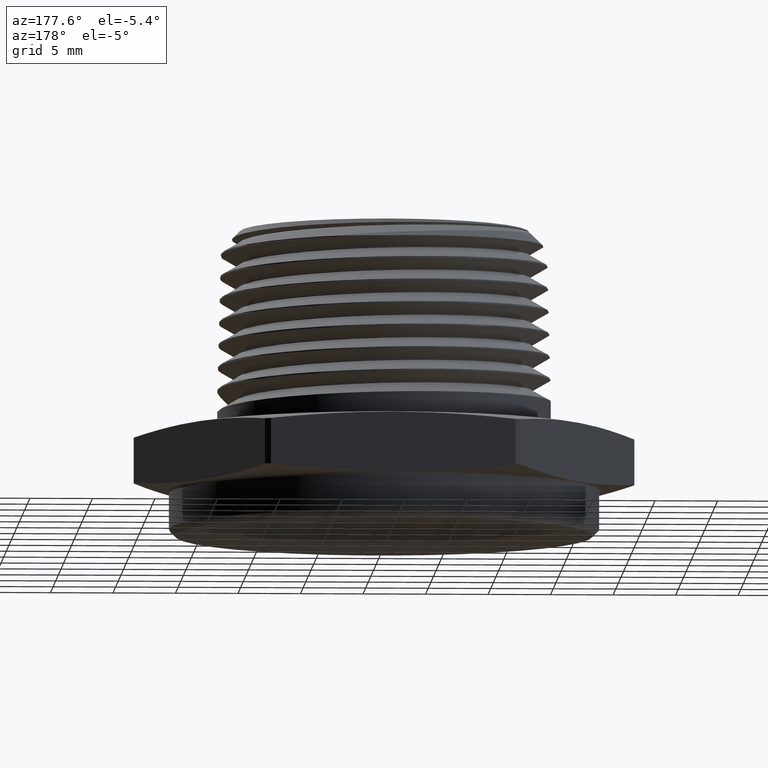
[diagram: clean part render]
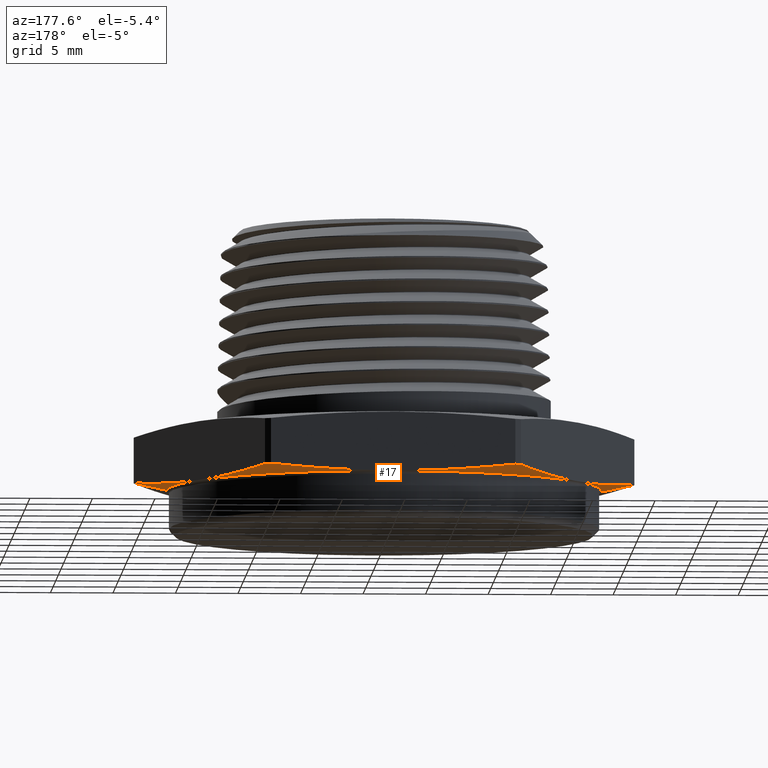
[diagram: same view with one face highlighted and labeled with its STEP entity id]
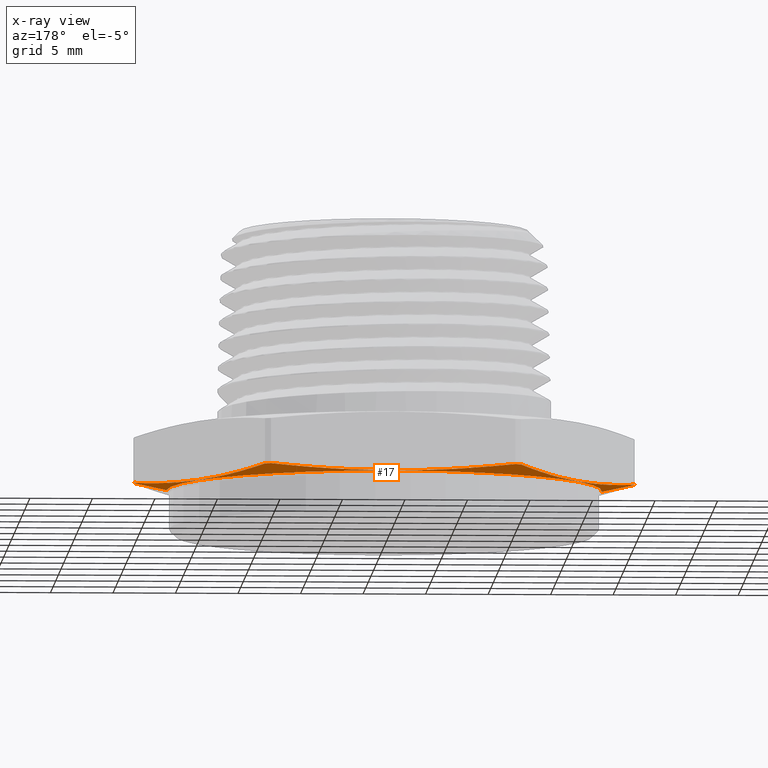
[diagram: x-ray of the same camera — body ghosted, the highlighted face saturated]
A machine part, auxiliary view. The second image highlights one B-rep face of the part: STEP entity #17.
The next image is the same camera in x-ray: the body ghosted, the highlighted face saturated — about 0% of this face is hidden behind the body in this view.
In plain terms, the highlighted conical surface has half-angle 78 deg.
Its self-contained STEP definition (entity closure, byte-faithful):
#17 = ADVANCED_FACE ( 'NONE', ( #640 ), #645, .T. ) ;
#294 = EDGE_LOOP ( 'NONE', ( #1031, #1032, #1033, #1034, #1035, #1036, #1037, #1038, #1039, #1040 ) ) ;
#576 = AXIS2_PLACEMENT_3D ( 'NONE', #3692, #3693, #3694 ) ;
#577 = AXIS2_PLACEMENT_3D ( 'NONE', #3698, #3699, #3700 ) ;
#578 = AXIS2_PLACEMENT_3D ( 'NONE', #3710, #3711, #3712 ) ;
#579 = AXIS2_PLACEMENT_3D ( 'NONE', #3724, #3725, #3726 ) ;
#580 = AXIS2_PLACEMENT_3D ( 'NONE', #3736, #3737, #3738 ) ;
#640 = FACE_OUTER_BOUND ( 'NONE', #294, .T. ) ;
#645 = CONICAL_SURFACE ( 'NONE', #1980, 0.7878566201357354300, 1.361356816555584000 ) ;
#801 = LINE ( 'NONE', #3691, #809 ) ;
#805 = CIRCLE ( 'NONE', #576, 0.6854208830918225900 ) ;
#808 = CIRCLE ( 'NONE', #577, 0.7878566201357354300 ) ;
#809 = VECTOR ( 'NONE', #3695, 39.37007874015748900 ) ;
#810 = LINE ( 'NONE', #3713, #815 ) ;
#811 = CIRCLE ( 'NONE', #578, 0.7878566201357354300 ) ;
#812 = CIRCLE ( 'NONE', #579, 0.7878566201357354300 ) ;
#813 = CIRCLE ( 'NONE', #580, 0.7878566201357354300 ) ;
#815 = VECTOR ( 'NONE', #3727, 39.37007874015748100 ) ;
#1031 = ORIENTED_EDGE ( 'NONE', *, *, #1921, .T. ) ;
#1032 = ORIENTED_EDGE ( 'NONE', *, *, #1922, .T. ) ;
#1033 = ORIENTED_EDGE ( 'NONE', *, *, #1923, .T. ) ;
#1034 = ORIENTED_EDGE ( 'NONE', *, *, #1924, .F. ) ;
#1035 = ORIENTED_EDGE ( 'NONE', *, *, #1925, .T. ) ;
#1036 = ORIENTED_EDGE ( 'NONE', *, *, #1926, .F. ) ;
#1037 = ORIENTED_EDGE ( 'NONE', *, *, #1927, .T. ) ;
#1038 = ORIENTED_EDGE ( 'NONE', *, *, #1928, .F. ) ;
#1039 = ORIENTED_EDGE ( 'NONE', *, *, #1929, .T. ) ;
#1040 = ORIENTED_EDGE ( 'NONE', *, *, #1930, .F. ) ;
#1133 = VERTEX_POINT ( 'NONE', #3155 ) ;
#1135 = VERTEX_POINT ( 'NONE', #3157 ) ;
#1137 = VERTEX_POINT ( 'NONE', #3159 ) ;
#1138 = VERTEX_POINT ( 'NONE', #3160 ) ;
#1139 = VERTEX_POINT ( 'NONE', #3161 ) ;
#1141 = VERTEX_POINT ( 'NONE', #3163 ) ;
#1143 = VERTEX_POINT ( 'NONE', #3165 ) ;
#1144 = VERTEX_POINT ( 'NONE', #3166 ) ;
#1145 = VERTEX_POINT ( 'NONE', #3167 ) ;
#1152 = VERTEX_POINT ( 'NONE', #3174 ) ;
#1921 = EDGE_CURVE ( 'NONE', #1143, #1144, #805, .T. ) ;
#1922 = EDGE_CURVE ( 'NONE', #1144, #1141, #801, .T. ) ;
#1923 = EDGE_CURVE ( 'NONE', #1141, #1139, #808, .T. ) ;
#1924 = EDGE_CURVE ( 'NONE', #1145, #1139, #5431, .T. ) ;
#1925 = EDGE_CURVE ( 'NONE', #1145, #1137, #811, .T. ) ;
#1926 = EDGE_CURVE ( 'NONE', #1152, #1137, #5432, .T. ) ;
#1927 = EDGE_CURVE ( 'NONE', #1152, #1135, #812, .T. ) ;
#1928 = EDGE_CURVE ( 'NONE', #1138, #1135, #5433, .T. ) ;
#1929 = EDGE_CURVE ( 'NONE', #1138, #1133, #813, .T. ) ;
#1930 = EDGE_CURVE ( 'NONE', #1143, #1133, #810, .T. ) ;
#1980 = AXIS2_PLACEMENT_3D ( 'NONE', #2093, #2094, #2092 ) ;
#2092 = DIRECTION ( 'NONE',  ( 1.000000000000000000, 0.0000000000000000000, -1.246112360589104400E-016 ) ) ;
#2093 = CARTESIAN_POINT ( 'NONE',  ( 2.943824924063742600E-018, 0.0000000000000000000, 0.02345702373357578400 ) ) ;
#2094 = DIRECTION ( 'NONE',  ( 1.254986547952384500E-016, 0.0000000000000000000, 1.000000000000000000 ) ) ;
#3155 = CARTESIAN_POINT ( 'NONE',  ( 0.7878566201357354300, 0.0000000000000000000, 0.02345702373357568700 ) ) ;
#3157 = CARTESIAN_POINT ( 'NONE',  ( 0.4029984657854861500, 0.6769861818872293700, 0.02345702373357573200 ) ) ;
#3159 = CARTESIAN_POINT ( 'NONE',  ( -0.3847879986326299100, 0.6874999999999998900, 0.02345702373357583200 ) ) ;
#3160 = CARTESIAN_POINT ( 'NONE',  ( 0.7877864644181165100, 0.01051381811277093300, 0.02345702373357588100 ) ) ;
#3161 = CARTESIAN_POINT ( 'NONE',  ( -0.7877864644181163900, 0.01051381811277086300, 0.02345702373357588100 ) ) ;
#3163 = CARTESIAN_POINT ( 'NONE',  ( -0.7878566201357354300, 0.0000000000000000000, 0.02345702373357588100 ) ) ;
#3165 = CARTESIAN_POINT ( 'NONE',  ( 0.6854208830918204800, 0.0000000000000000000, 0.001683635675387379000 ) ) ;
#3166 = CARTESIAN_POINT ( 'NONE',  ( -0.6854208830918204800, 8.393984905471501900E-017, 0.001683635675387549700 ) ) ;
#3167 = CARTESIAN_POINT ( 'NONE',  ( -0.4029984657854867600, 0.6769861818872290300, 0.02345702373357588100 ) ) ;
#3174 = CARTESIAN_POINT ( 'NONE',  ( 0.3847879986326299100, 0.6874999999999998900, 0.02345702373357588100 ) ) ;
#3691 = CARTESIAN_POINT ( 'NONE',  ( -0.7878566201357354300, 9.648460880362804700E-017, 0.02345702373357588100 ) ) ;
#3692 = CARTESIAN_POINT ( 'NONE',  ( 5.234056155062456600E-018, 0.0000000000000000000, 0.001683635675387464200 ) ) ;
#3693 = DIRECTION ( 'NONE',  ( 1.254986547952384500E-016, 0.0000000000000000000, 1.000000000000000000 ) ) ;
#3694 = DIRECTION ( 'NONE',  ( 1.000000000000000000, 0.0000000000000000000, -1.253300212794401400E-016 ) ) ;
#3695 = DIRECTION ( 'NONE',  ( -0.9781476007338069100, 1.197885328332319900E-016, 0.2079116908177526000 ) ) ;
#3696 = CARTESIAN_POINT ( 'NONE',  ( -0.4029984657854867600, 0.6769861818872290300, 0.02345702373357588100 ) ) ;
#3697 = CARTESIAN_POINT ( 'NONE',  ( -0.4350641323382060700, 0.6214468182393575500, 0.01679940204084138400 ) ) ;
#3698 = CARTESIAN_POINT ( 'NONE',  ( 2.943824924063742600E-018, 0.0000000000000000000, 0.02345702373357578400 ) ) ;
#3699 = DIRECTION ( 'NONE',  ( -1.254986547952384500E-016, -0.0000000000000000000, -1.000000000000000000 ) ) ;
#3700 = DIRECTION ( 'NONE',  ( -1.000000000000000000, 0.0000000000000000000, 1.246112360589104400E-016 ) ) ;
#3701 = CARTESIAN_POINT ( 'NONE',  ( -0.4671297988909251000, 0.5659074545914861700, 0.01141340463327823400 ) ) ;
#3702 = CARTESIAN_POINT ( 'NONE',  ( -0.5312611319963631600, 0.4548287272957429200, 0.004066218508011671700 ) ) ;
#3703 = CARTESIAN_POINT ( 'NONE',  ( -0.5953924651018016600, 0.3437499999999998300, 0.0001849127253886720300 ) ) ;
#3704 = CARTESIAN_POINT ( 'NONE',  ( -0.6595237982072397200, 0.2326712727042568600, 0.004066218508011693400 ) ) ;
#3705 = CARTESIAN_POINT ( 'NONE',  ( -0.7236551313126781100, 0.1215925454085138700, 0.01141340463327827700 ) ) ;
#3706 = CARTESIAN_POINT ( 'NONE',  ( -0.7557207978653974800, 0.06605318176064245400, 0.01679940204084143900 ) ) ;
#3707 = CARTESIAN_POINT ( 'NONE',  ( -0.7877864644181163900, 0.01051381811277086300, 0.02345702373357588100 ) ) ;
#3708 = CARTESIAN_POINT ( 'NONE',  ( 0.3847879986326299100, 0.6874999999999998900, 0.02345702373357588100 ) ) ;
#3709 = CARTESIAN_POINT ( 'NONE',  ( 0.3207939254006876900, 0.6875000000000000000, 0.01681365130507889200 ) ) ;
#3710 = CARTESIAN_POINT ( 'NONE',  ( 2.943824924063742600E-018, 0.0000000000000000000, 0.02345702373357578400 ) ) ;
#3711 = DIRECTION ( 'NONE',  ( -1.254986547952384500E-016, -0.0000000000000000000, -1.000000000000000000 ) ) ;
#3712 = DIRECTION ( 'NONE',  ( -1.000000000000000000, 0.0000000000000000000, 1.246112360589104400E-016 ) ) ;
#3713 = CARTESIAN_POINT ( 'NONE',  ( 0.7878566201357354300, 0.0000000000000000000, 0.02345702373357568700 ) ) ;
#3714 = CARTESIAN_POINT ( 'NONE',  ( 0.2567715097588390000, 0.6874999999999998900, 0.01143312297969431400 ) ) ;
#3715 = CARTESIAN_POINT ( 'NONE',  ( 0.1286501297542923300, 0.6875000000000000000, 0.004082824307678927100 ) ) ;
#3716 = CARTESIAN_POINT ( 'NONE',  ( 0.06455070254764767900, 0.6875000000000000000, 0.002133676757434792600 ) ) ;
#3717 = CARTESIAN_POINT ( 'NONE',  ( -0.06373527960806492400, 0.6875000000000000000, 0.002117505869398945600 ) ) ;
#3718 = CARTESIAN_POINT ( 'NONE',  ( -0.1279218478780772800, 0.6875000000000000000, 0.004051076068858394500 ) ) ;
#3719 = CARTESIAN_POINT ( 'NONE',  ( -0.2563731344308744500, 0.6874999999999998900, 0.01140032272176029800 ) ) ;
#3720 = CARTESIAN_POINT ( 'NONE',  ( -0.3206987693183109300, 0.6874999999999998900, 0.01680377293256510300 ) ) ;
#3721 = CARTESIAN_POINT ( 'NONE',  ( -0.3847879986326299100, 0.6874999999999998900, 0.02345702373357583200 ) ) ;
#3722 = CARTESIAN_POINT ( 'NONE',  ( 0.7877864644181165100, 0.01051381811277093300, 0.02345702373357588100 ) ) ;
#3723 = CARTESIAN_POINT ( 'NONE',  ( 0.7557207978653969200, 0.06605318176064241300, 0.01679940204084119300 ) ) ;
#3724 = CARTESIAN_POINT ( 'NONE',  ( 2.943824924063742600E-018, 0.0000000000000000000, 0.02345702373357578400 ) ) ;
#3725 = DIRECTION ( 'NONE',  ( -1.254986547952384500E-016, -0.0000000000000000000, -1.000000000000000000 ) ) ;
#3726 = DIRECTION ( 'NONE',  ( -1.000000000000000000, 0.0000000000000000000, 1.246112360589104400E-016 ) ) ;
#3727 = DIRECTION ( 'NONE',  ( 0.9781476007338071300, 0.0000000000000000000, 0.2079116908177524000 ) ) ;
#3728 = CARTESIAN_POINT ( 'NONE',  ( 0.7236551313126778900, 0.1215925454085139000, 0.01141340463327803300 ) ) ;
#3729 = CARTESIAN_POINT ( 'NONE',  ( 0.6595237982072396100, 0.2326712727042569700, 0.004066218508011448800 ) ) ;
#3730 = CARTESIAN_POINT ( 'NONE',  ( 0.5953924651018013300, 0.3437500000000003300, 0.0001849127253884832200 ) ) ;
#3731 = CARTESIAN_POINT ( 'NONE',  ( 0.5312611319963629300, 0.4548287272957430300, 0.004066218508011470500 ) ) ;
#3732 = CARTESIAN_POINT ( 'NONE',  ( 0.4671297988909246500, 0.5659074545914861700, 0.01141340463327805200 ) ) ;
#3733 = CARTESIAN_POINT ( 'NONE',  ( 0.4350641323382053400, 0.6214468182393577700, 0.01679940204084122100 ) ) ;
#3734 = CARTESIAN_POINT ( 'NONE',  ( 0.4029984657854861500, 0.6769861818872293700, 0.02345702373357573200 ) ) ;
#3736 = CARTESIAN_POINT ( 'NONE',  ( 2.943824924063742600E-018, 0.0000000000000000000, 0.02345702373357578400 ) ) ;
#3737 = DIRECTION ( 'NONE',  ( -1.254986547952384500E-016, -0.0000000000000000000, -1.000000000000000000 ) ) ;
#3738 = DIRECTION ( 'NONE',  ( -1.000000000000000000, 0.0000000000000000000, 1.246112360589104400E-016 ) ) ;
#5431 = B_SPLINE_CURVE_WITH_KNOTS ( 'NONE', 3,
 ( #3696, #3697, #3701, #3702, #3703, #3704, #3705, #3706, #3707 ),
 .UNSPECIFIED., .F., .F.,
 ( 4, 2, 1, 2, 4 ),
 ( 1.926409279437244500E-006, 0.004888733991913832500, 0.009775541574548228900, 0.01466234915718262400, 0.01954915673981702200 ),
 .UNSPECIFIED. ) ;
#5432 = B_SPLINE_CURVE_WITH_KNOTS ( 'NONE', 3,
 ( #3708, #3709, #3714, #3715, #3716, #3717, #3718, #3719, #3720, #3721 ),
 .UNSPECIFIED., .F., .F.,
 ( 4, 2, 2, 2, 4 ),
 ( 0.03842031353114799800, 0.04332173302324189600, 0.04822315251533578600, 0.05312457200742968400, 0.05802599149952358100 ),
 .UNSPECIFIED. ) ;
#5433 = B_SPLINE_CURVE_WITH_KNOTS ( 'NONE', 3,
 ( #3722, #3723, #3728, #3729, #3730, #3731, #3732, #3733, #3734 ),
 .UNSPECIFIED., .F., .F.,
 ( 4, 2, 1, 2, 4 ),
 ( 1.926409279489008800E-006, 0.004888733991913888000, 0.009775541574548287900, 0.01466234915718268700, 0.01954915673981708400 ),
 .UNSPECIFIED. ) ;